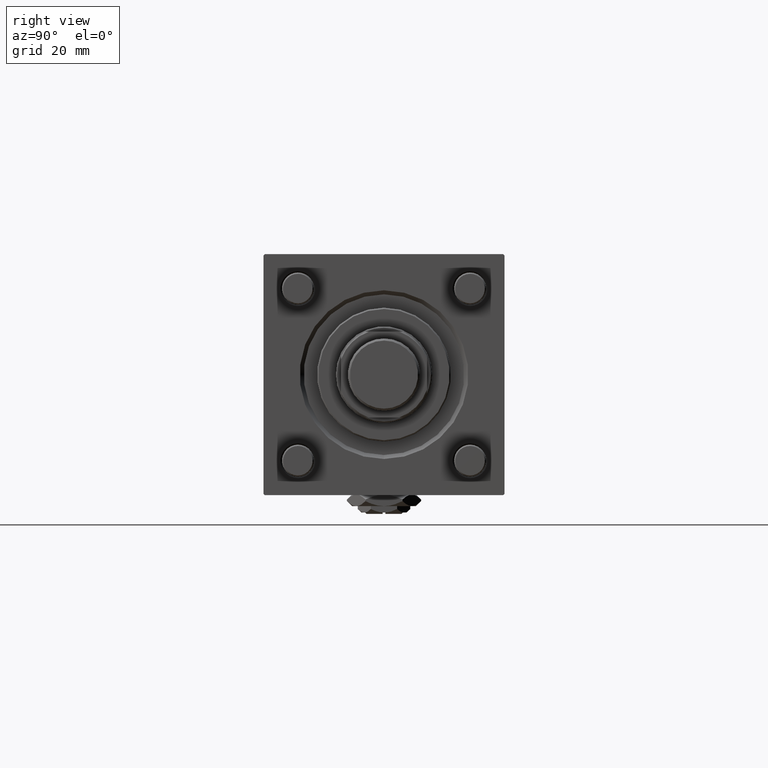
[diagram: clean part render]
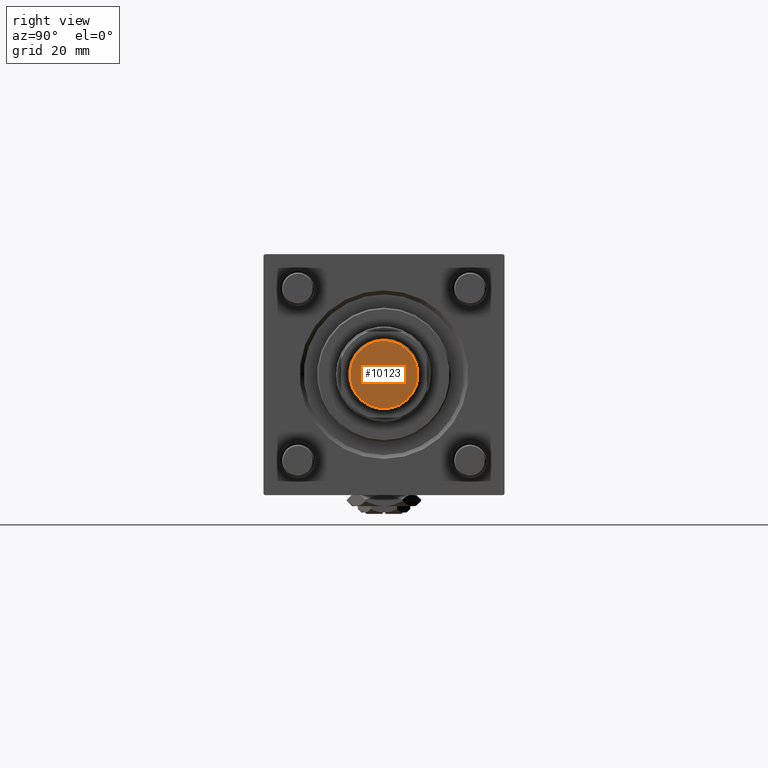
[diagram: same view with one face highlighted and labeled with its STEP entity id]
A machine part, right view. The second image highlights one B-rep face of the part: STEP entity #10123.
In plain terms, the highlighted planar face has unit normal (-1, 0, 0).
Its self-contained STEP definition (entity closure, byte-faithful):
#1940 = CARTESIAN_POINT ( 'NONE',  ( 12.70000000000000462, 0.000000000000000000, 0.000000000000000000 ) ) ;
#4722 = EDGE_LOOP ( 'NONE', ( #32676, #47332 ) ) ;
#6883 = CIRCLE ( 'NONE', #22094, 12.70000000000000462 ) ;
#8727 = CARTESIAN_POINT ( 'NONE',  ( 0.000000000000000000, 0.000000000000000000, 0.000000000000000000 ) ) ;
#9357 = DIRECTION ( 'NONE',  ( 1.000000000000000000, 0.000000000000000000, 0.000000000000000000 ) ) ;
#10123 = ADVANCED_FACE ( 'NONE', ( #34742 ), #12120, .F. ) ;
#12120 = PLANE ( 'NONE',  #37608 ) ;
#16267 = CARTESIAN_POINT ( 'NONE',  ( 0.000000000000000000, 0.000000000000000000, 0.000000000000000000 ) ) ;
#17704 = DIRECTION ( 'NONE',  ( -0.000000000000000000, -0.000000000000000000, -1.000000000000000000 ) ) ;
#19681 = AXIS2_PLACEMENT_3D ( 'NONE', #8727, #36407, #54582 ) ;
#22094 = AXIS2_PLACEMENT_3D ( 'NONE', #22167, #17704, #9357 ) ;
#22167 = CARTESIAN_POINT ( 'NONE',  ( 0.000000000000000000, 0.000000000000000000, 0.000000000000000000 ) ) ;
#29973 = DIRECTION ( 'NONE',  ( 1.000000000000000000, 0.000000000000000000, -0.000000000000000000 ) ) ;
#32067 = CIRCLE ( 'NONE', #19681, 12.70000000000000462 ) ;
#32676 = ORIENTED_EDGE ( 'NONE', *, *, #32819, .T. ) ;
#32819 = EDGE_CURVE ( 'NONE', #52661, #41523, #6883, .T. ) ;
#34742 = FACE_OUTER_BOUND ( 'NONE', #4722, .T. ) ;
#36407 = DIRECTION ( 'NONE',  ( -0.000000000000000000, -0.000000000000000000, -1.000000000000000000 ) ) ;
#37608 = AXIS2_PLACEMENT_3D ( 'NONE', #16267, #43691, #29973 ) ;
#41523 = VERTEX_POINT ( 'NONE', #45364 ) ;
#43691 = DIRECTION ( 'NONE',  ( 0.000000000000000000, 0.000000000000000000, 1.000000000000000000 ) ) ;
#45364 = CARTESIAN_POINT ( 'NONE',  ( -12.70000000000000462, 1.604287306883033044E-15, 0.000000000000000000 ) ) ;
#47332 = ORIENTED_EDGE ( 'NONE', *, *, #55208, .T. ) ;
#52661 = VERTEX_POINT ( 'NONE', #1940 ) ;
#54582 = DIRECTION ( 'NONE',  ( 1.000000000000000000, 0.000000000000000000, 0.000000000000000000 ) ) ;
#55208 = EDGE_CURVE ( 'NONE', #41523, #52661, #32067, .T. ) ;